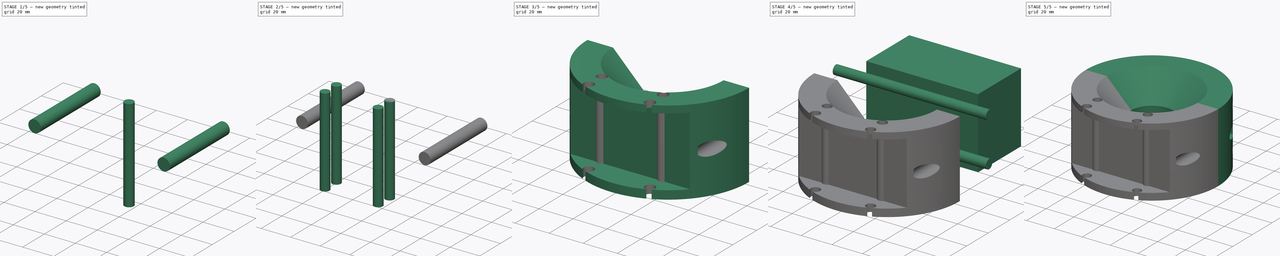
[diagram: build sequence overview — one tinted view per stage of 5, left to right]
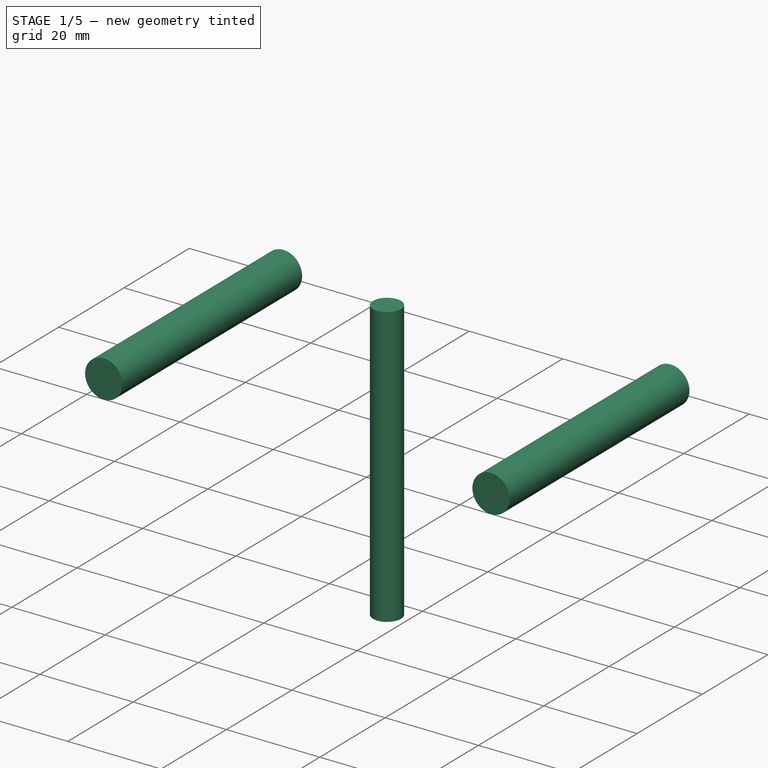
[diagram: stage 1 of 5 — iso view after this stage's code; geometry added in this stage tinted green]
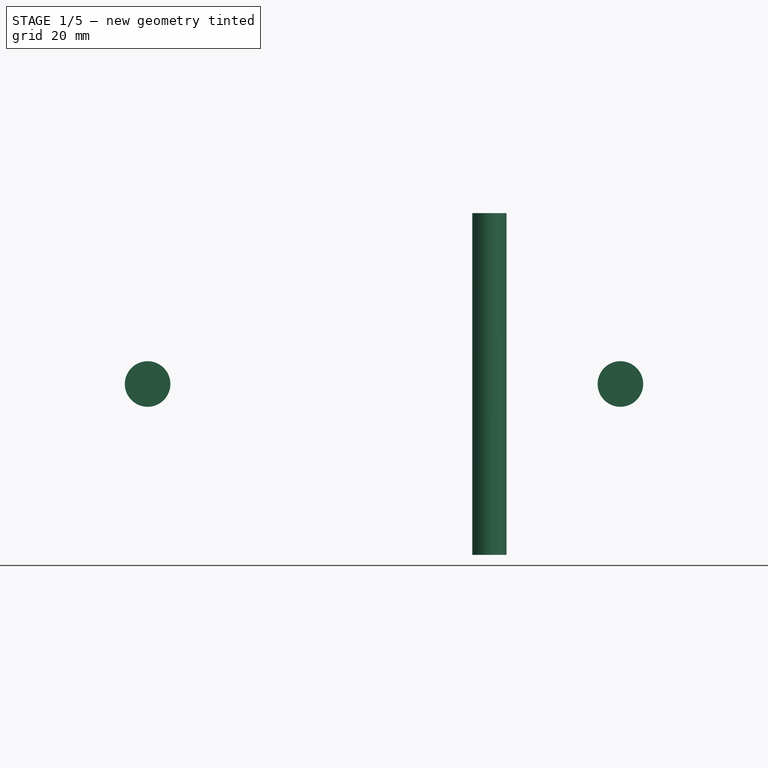
[diagram: stage 1 of 5 — front view after this stage's code; geometry added in this stage tinted green]
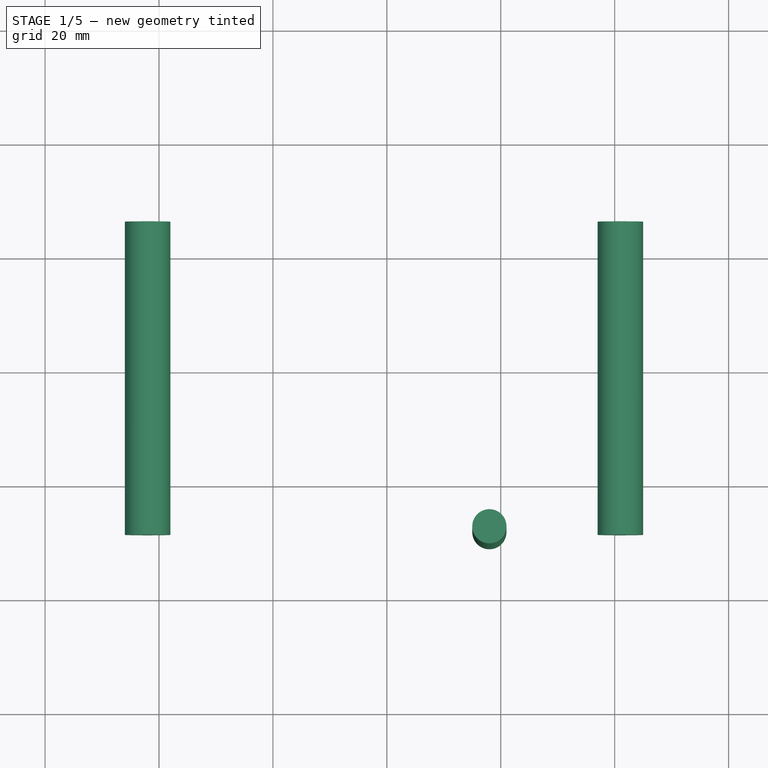
[diagram: stage 1 of 5 — top view after this stage's code; geometry added in this stage tinted green]
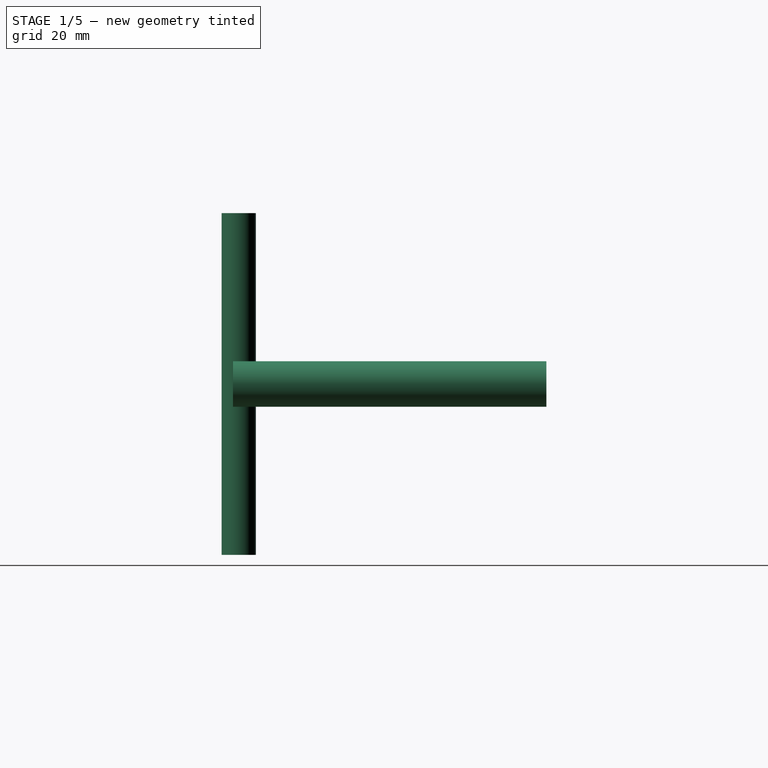
[diagram: stage 1 of 5 — right view after this stage's code; geometry added in this stage tinted green]
FCSTD DOCUMENT  (FreeCAD 0.16R5086 (Git))
Label: sujeccion
License: All rights reserved
LicenseURL: http://en.wikipedia.org/wiki/All_rights_reserved
objects: Part::Cut×6, Part::Cylinder×6, Part::MultiFuse×5, Part::Box×2, Sketcher::SketchObject×1, PartDesign::Revolution×1, Part::FeaturePython×1
note: 23 computed .brp shape members not serialized (recipe doc carries the construction recipe); baked Part::Feature solids carry a one-line shape summary decoded from their .brp

FEATURE [Part::Cylinder] Cylinder001  label="Cilindro001"
  Angle = 360
  Height = 60
  Placement = pos=(18,-28,-5) rot=(0,0,1;0rad)
  Radius = 3
FEATURE [Part::Cylinder] Cylinder002  label="Cilindro002"
  Angle = 360
  Height = 55
  Placement = pos=(41,26,25) rot=(1,0,0;1.5708rad)
  Radius = 4
FEATURE [Part::Cylinder] Cylinder005  label="Cilindro005"
  Angle = 360
  Height = 55
  Placement = pos=(-42,26,25) rot=(1,0,0;1.5708rad)
  Radius = 4
FEATURE [Part::MultiFuse] Fusion004
  Shapes = -> [Cylinder005,Cylinder002]
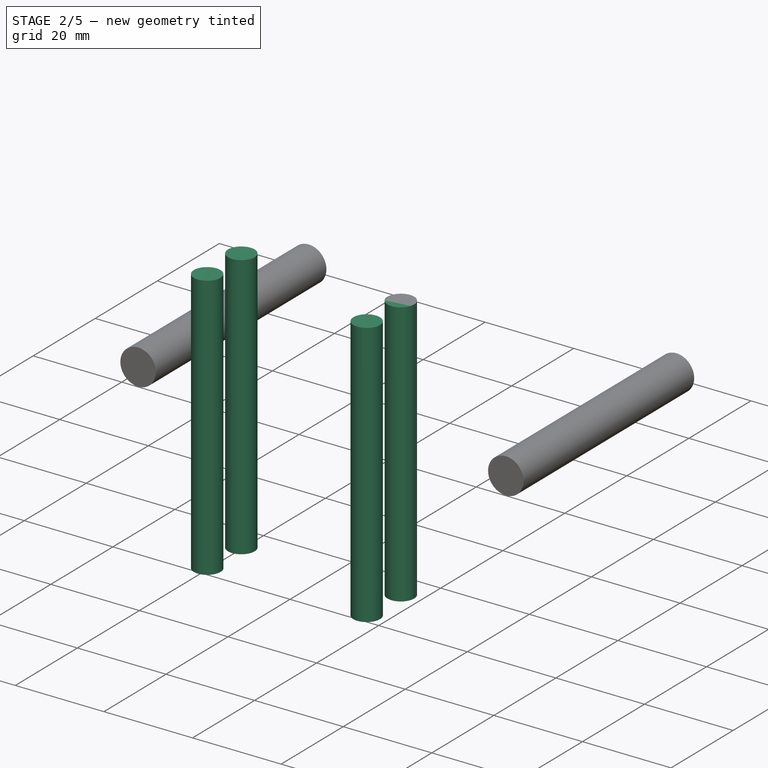
[diagram: stage 2 of 5 — iso view after this stage's code; geometry added in this stage tinted green]
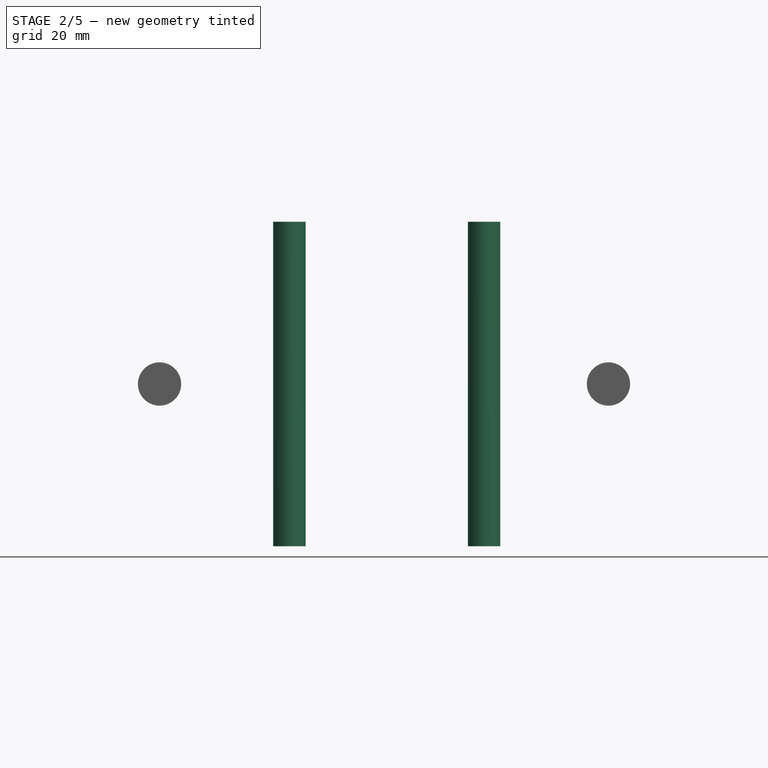
[diagram: stage 2 of 5 — front view after this stage's code; geometry added in this stage tinted green]
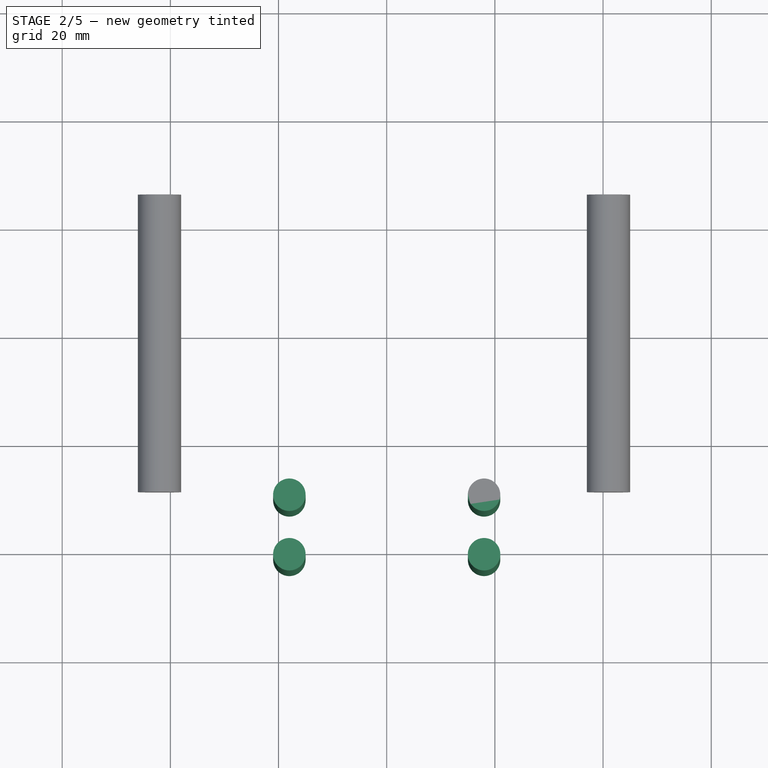
[diagram: stage 2 of 5 — top view after this stage's code; geometry added in this stage tinted green]
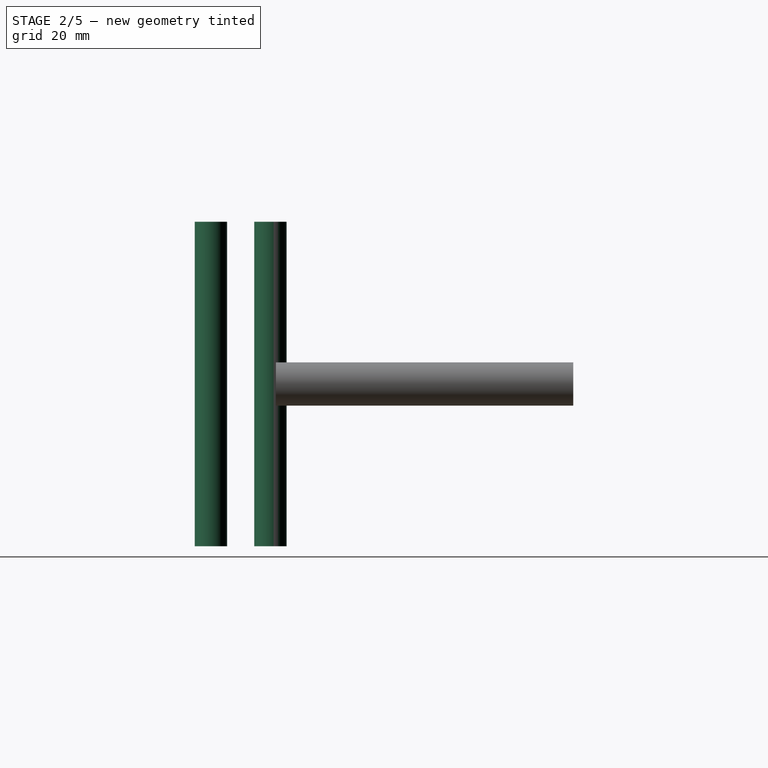
[diagram: stage 2 of 5 — right view after this stage's code; geometry added in this stage tinted green]
FEATURE [Part::Cylinder] Cylinder  label="Cilindro"
  Angle = 360
  Height = 60
  Placement = pos=(18,-39,-5) rot=(0,0,1;0rad)
  Radius = 3
FEATURE [Part::MultiFuse] Fusion
  Placement = pos=(-36,0,0) rot=(0,0,1;0rad)
  Shapes = -> [Cylinder,Cylinder001]
FEATURE [Part::MultiFuse] Fusion001
  Shapes = -> [Cylinder,Cylinder001]
FEATURE [Part::MultiFuse] Fusion002
  Placement = pos=(0,-2,0) rot=(0,0,1;0rad)
  Shapes = -> [Fusion001,Fusion]
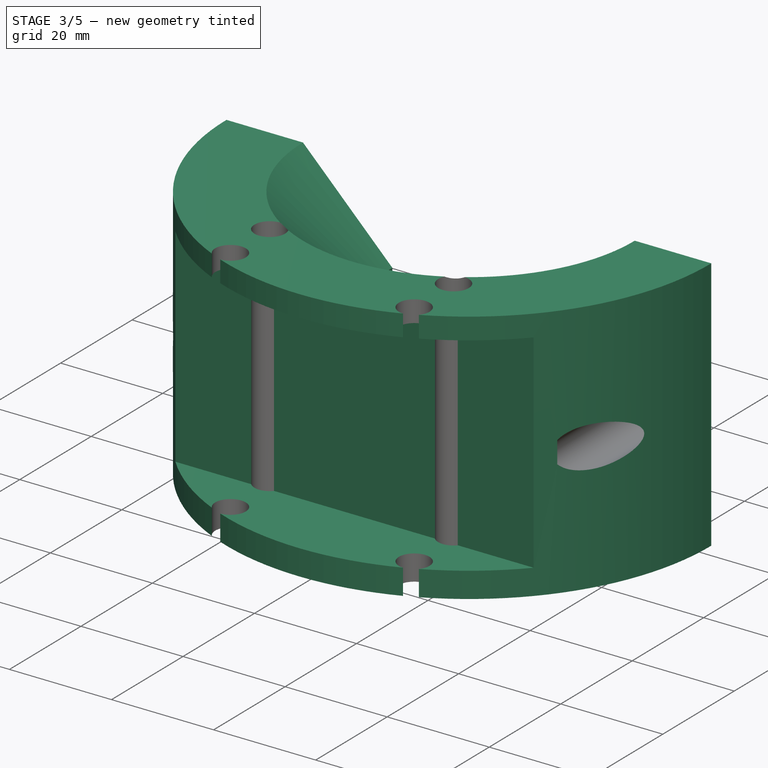
[diagram: stage 3 of 5 — iso view after this stage's code; geometry added in this stage tinted green]
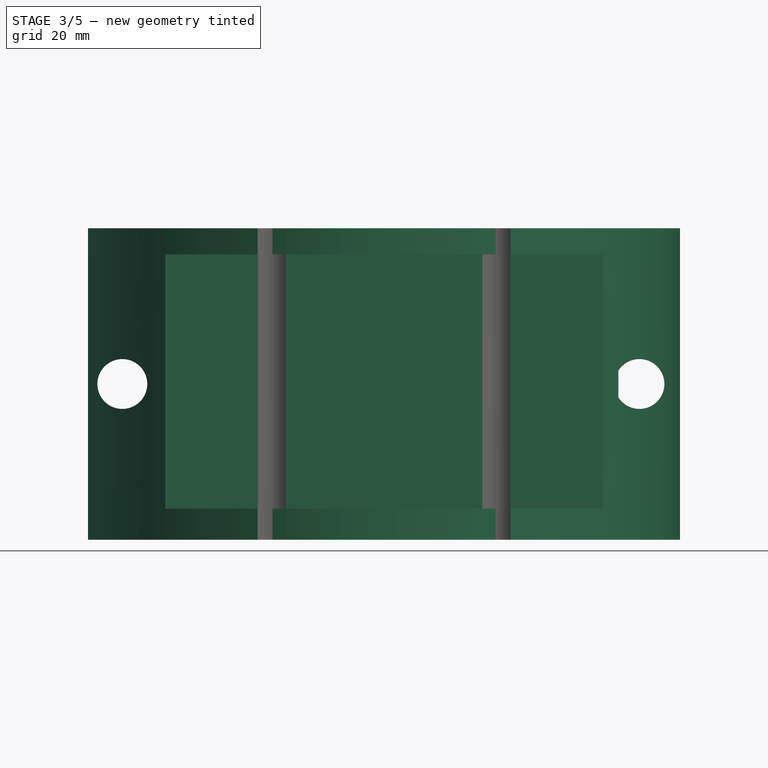
[diagram: stage 3 of 5 — front view after this stage's code; geometry added in this stage tinted green]
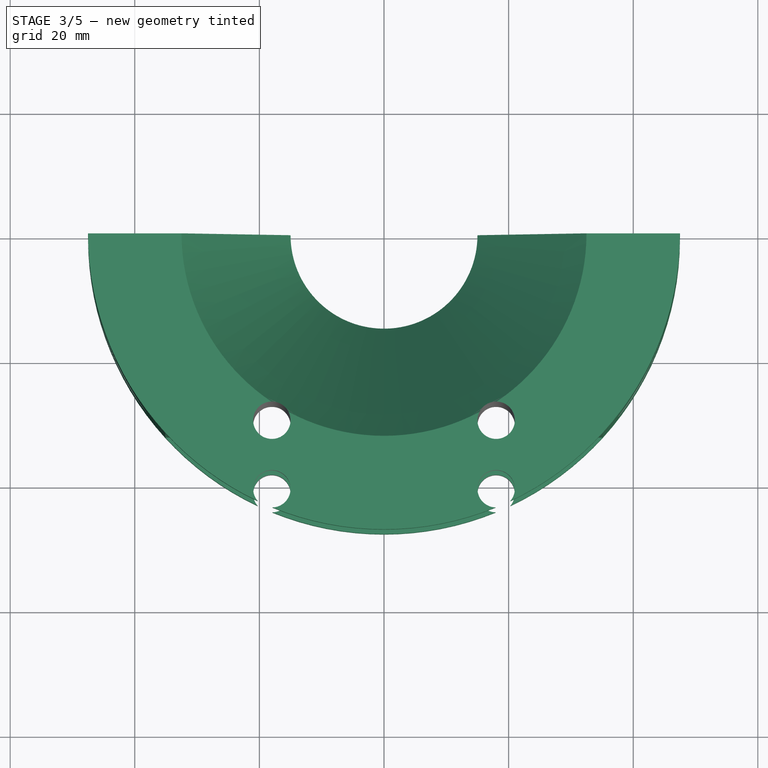
[diagram: stage 3 of 5 — top view after this stage's code; geometry added in this stage tinted green]
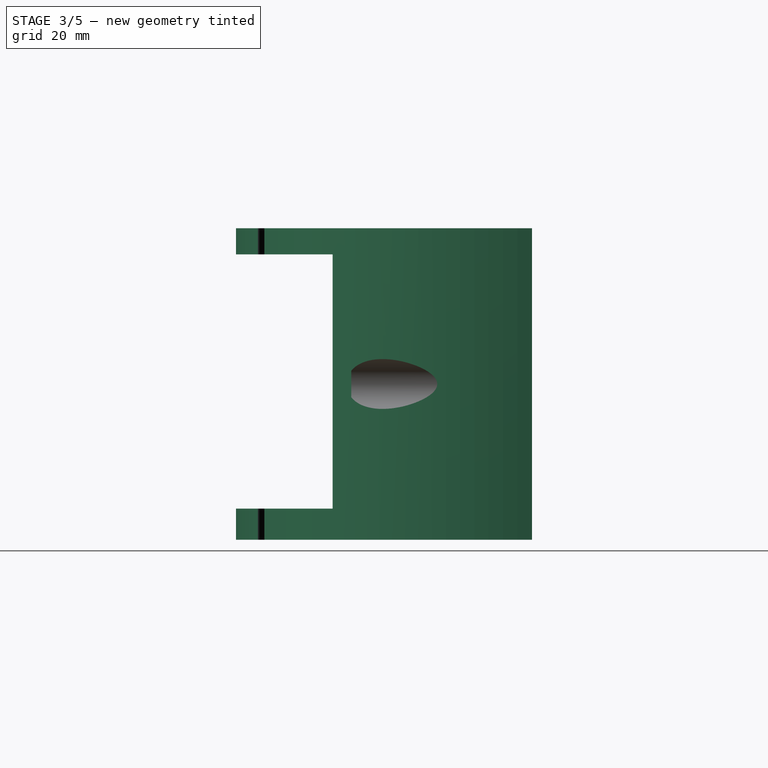
[diagram: stage 3 of 5 — right view after this stage's code; geometry added in this stage tinted green]
FEATURE [Sketcher::SketchObject] Sketch
  Placement = pos=(0,0,0) rot=(1,0,0;1.5708rad)
  sketch-geometry (7):
    g0: LineSegment StartX=32.5 StartY=50 StartZ=0 EndX=15 EndY=32.5 EndZ=0
    g1: LineSegment StartX=15 StartY=32.5 StartZ=0 EndX=15 EndY=17.5 EndZ=0
    g2: LineSegment StartX=15 StartY=17.5 StartZ=0 EndX=32.5 EndY=0 EndZ=0
    g3: LineSegment StartX=32.5 StartY=0 StartZ=0 EndX=47.5 EndY=0 EndZ=0
    g4: LineSegment StartX=47.5 StartY=0 StartZ=0 EndX=47.5 EndY=50 EndZ=0
    g5: LineSegment StartX=47.5 StartY=50 StartZ=0 EndX=32.5 EndY=50 EndZ=0
    g6: LineSegment [constr] StartX=32.5 StartY=50 StartZ=0 EndX=32.5 EndY=0 EndZ=0
  constraints (20):
    c: Coincident(g0,g1)
    c: Vertical(g1)
    c: Coincident(g1,g2)
    c: Coincident(g2,g3)
    c: Horizontal(g3)
    c: Coincident(g3,g4)
    c: Vertical(g4)
    c: Coincident(g4,g5)
    c: Coincident(g5,g0)
    c: Horizontal(g5)
    c: Coincident(g6,g0)
    c: Coincident(g6,g2)
    c: Vertical(g6)
    c: Equal(g2,g0)
    c: PointOnObject(g3,g-1)
    c: Angle(g-1,g2) = 2.35619
    c: DistanceX(g-2,g1) = 15
    c: Distance(g1) = 15
    c: Distance(g4) = 50
    c: Distance(g5) = 15
FEATURE [PartDesign::Revolution] Revolution
  Angle = 180
  Axis = (0,0,1)
  Base = (0,0,0)
  Placement = pos=(0,0,0) rot=(1,0,0;1.5708rad)
  ReferenceAxis = -> Sketch [V_Axis]
  Reversed = true
  Sketch = -> Sketch
FEATURE [Part::Box] Box  label="Cubo"
  Height = 40.8
  Length = 73
  Placement = pos=(-36,-72,5) rot=(0,0,1;0rad)
  Width = 40
FEATURE [Part::Cut] Cut
  Base = -> Revolution
  Tool = -> Box
FEATURE [Part::Cut] Cut001
  Base = -> Cut
  Tool = -> Fusion002
FEATURE [Part::Cut] Cut005
  Base = -> Cut001
  Tool = -> Fusion004
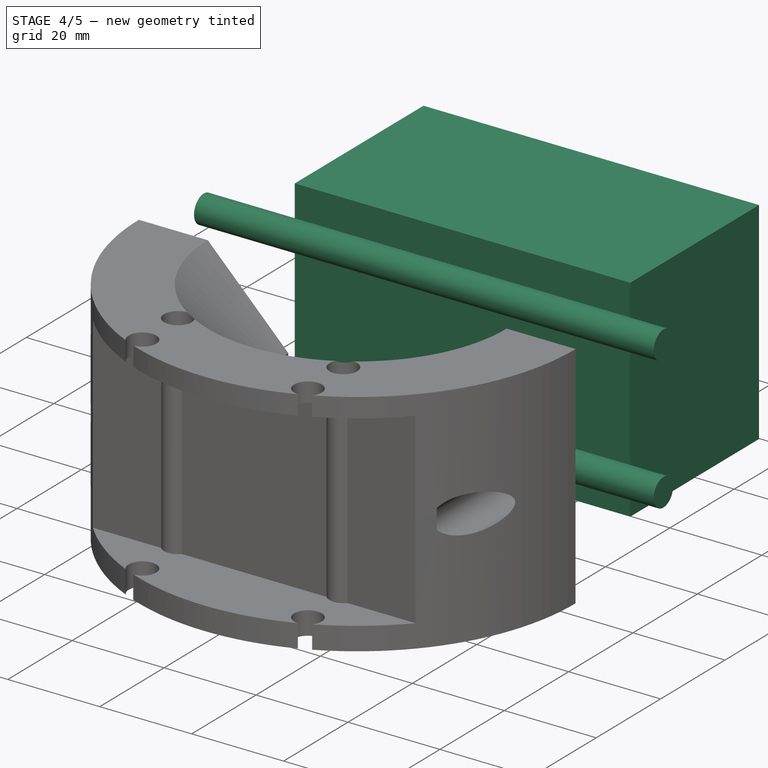
[diagram: stage 4 of 5 — iso view after this stage's code; geometry added in this stage tinted green]
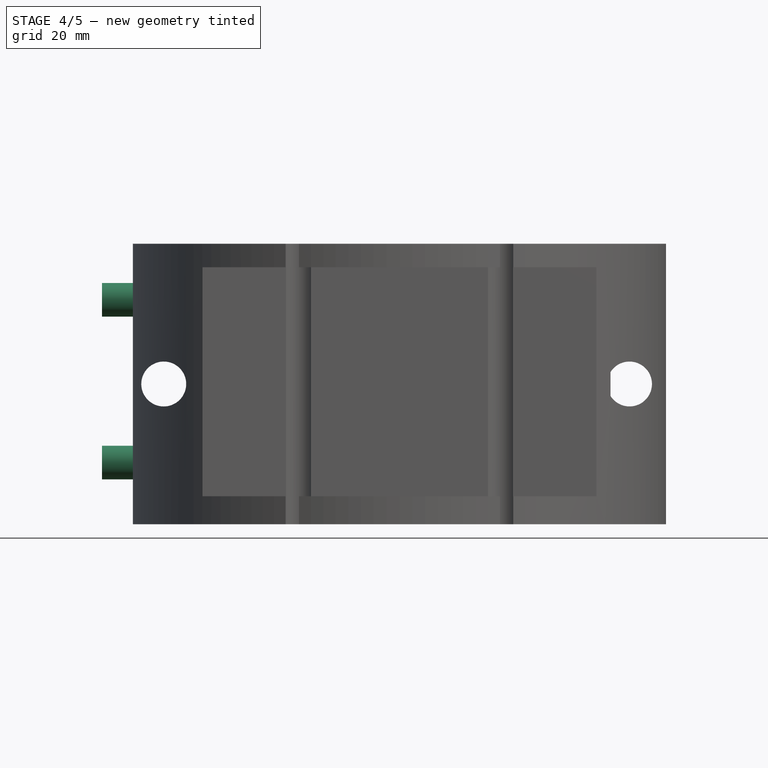
[diagram: stage 4 of 5 — front view after this stage's code; geometry added in this stage tinted green]
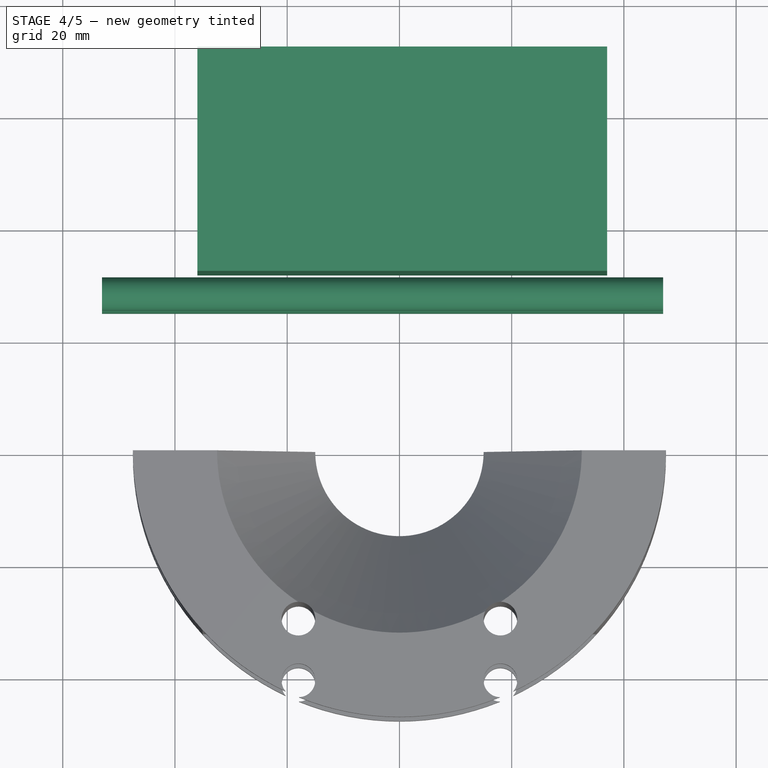
[diagram: stage 4 of 5 — top view after this stage's code; geometry added in this stage tinted green]
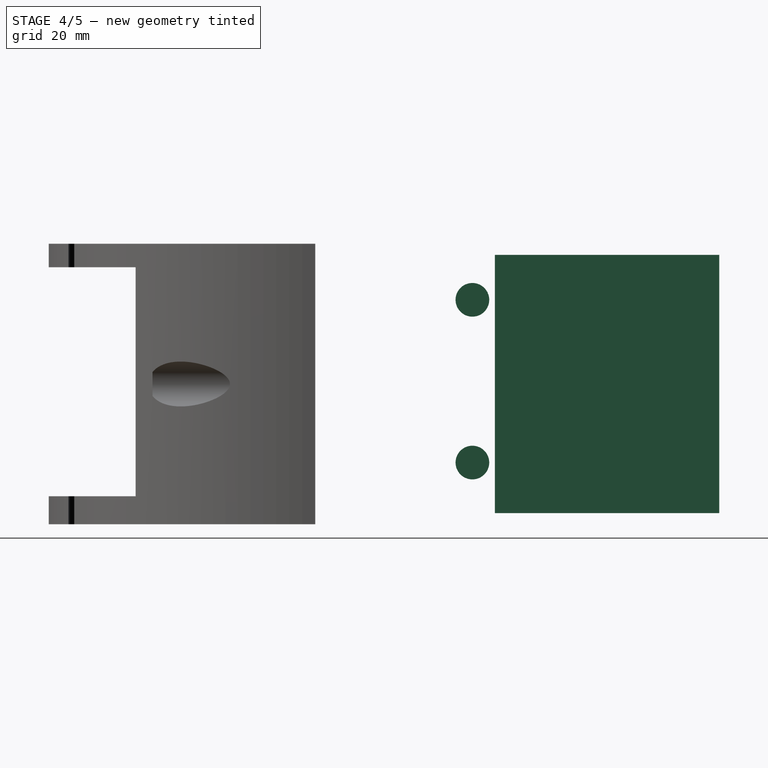
[diagram: stage 4 of 5 — right view after this stage's code; geometry added in this stage tinted green]
FEATURE [Part::Box] Box001  label="Cubo001"
  Height = 46
  Length = 73
  Placement = pos=(-36,32,2) rot=(0,0,1;0rad)
  Width = 40
FEATURE [Part::Cylinder] Cylinder003  label="Cilindro003"
  Angle = 360
  Height = 100
  Placement = pos=(47,28,40) rot=(0.57735,-0.57735,-0.57735;2.0944rad)
  Radius = 3
FEATURE [Part::Cylinder] Cylinder004  label="Cilindro004"
  Angle = 360
  Height = 100
  Placement = pos=(47,28,11) rot=(0.57735,-0.57735,-0.57735;2.0944rad)
  Radius = 3
FEATURE [Part::MultiFuse] Fusion003
  Shapes = -> [Cylinder004,Cylinder003]
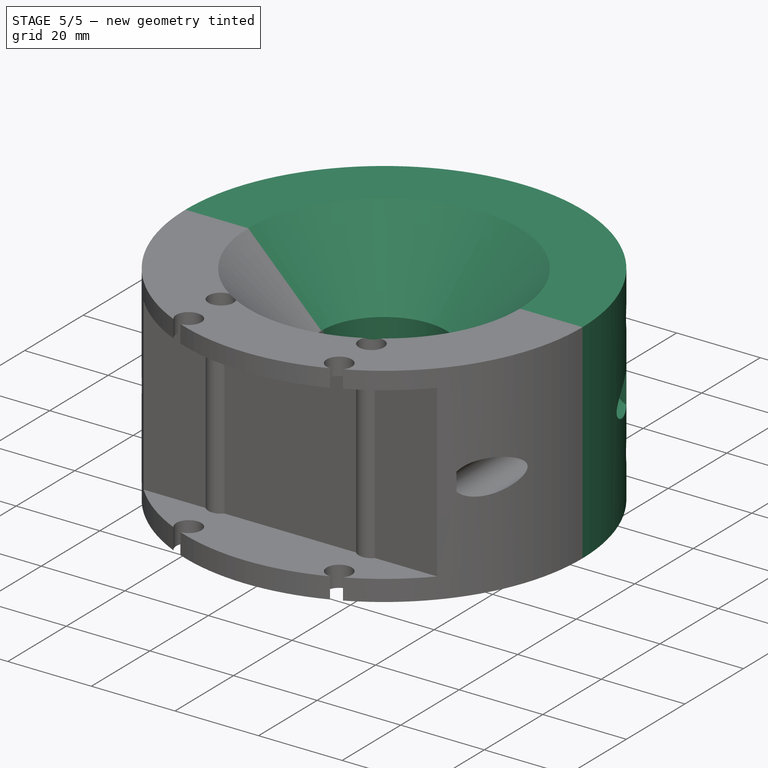
[diagram: stage 5 of 5 — iso view after this stage's code; geometry added in this stage tinted green]
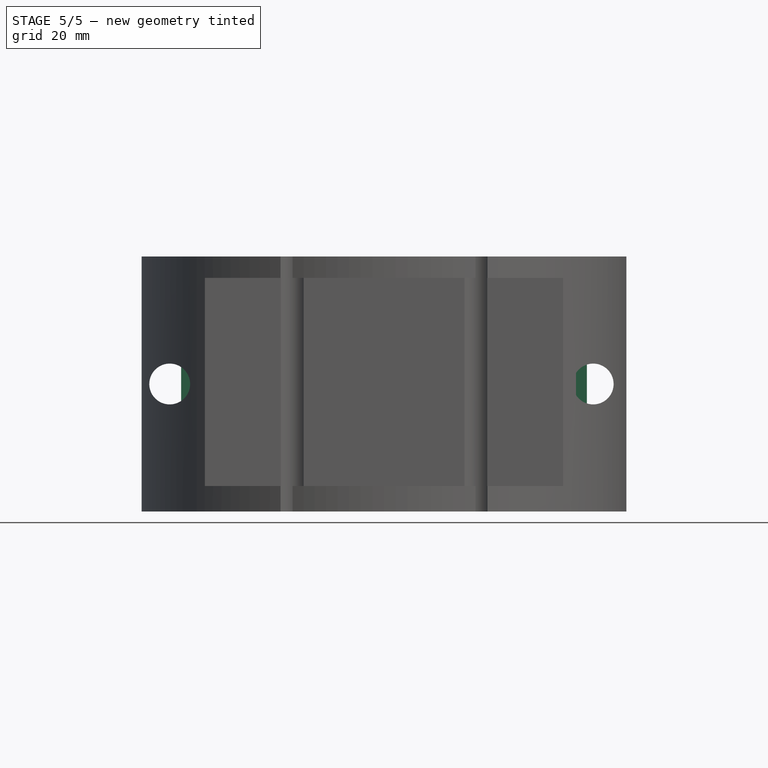
[diagram: stage 5 of 5 — front view after this stage's code; geometry added in this stage tinted green]
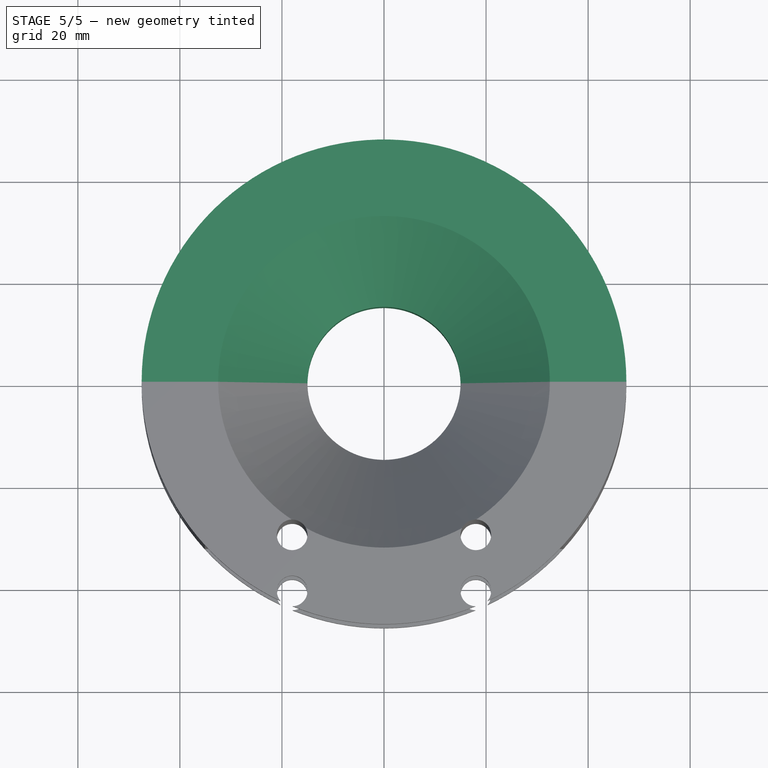
[diagram: stage 5 of 5 — top view after this stage's code; geometry added in this stage tinted green]
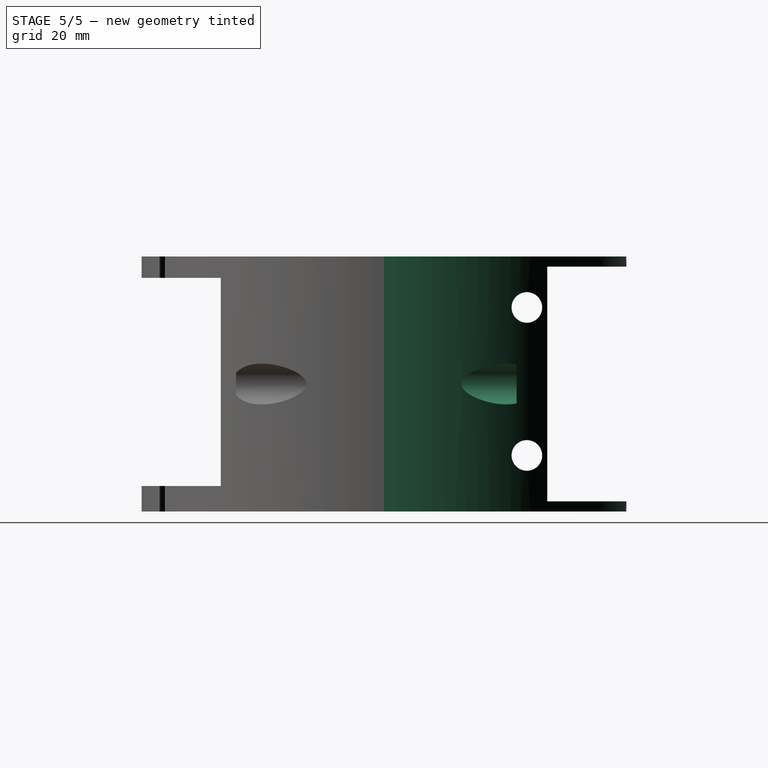
[diagram: stage 5 of 5 — right view after this stage's code; geometry added in this stage tinted green]
FEATURE [Part::FeaturePython] Clone  label="Clone of Revolution"  # Draft clone (typed FeaturePython)
  Objects = -> [Revolution]
  Placement = pos=(0,0,0) rot=(0,-0.707107,-0.707107;3.14159rad)
  Scale = (1,1,1)
FEATURE [Part::Cut] Cut002
  Base = -> Clone
  Tool = -> Box001
FEATURE [Part::Cut] Cut003
  Base = -> Cut002
  Tool = -> Fusion003
FEATURE [Part::Cut] Cut004
  Base = -> Cut003
  Tool = -> Fusion004
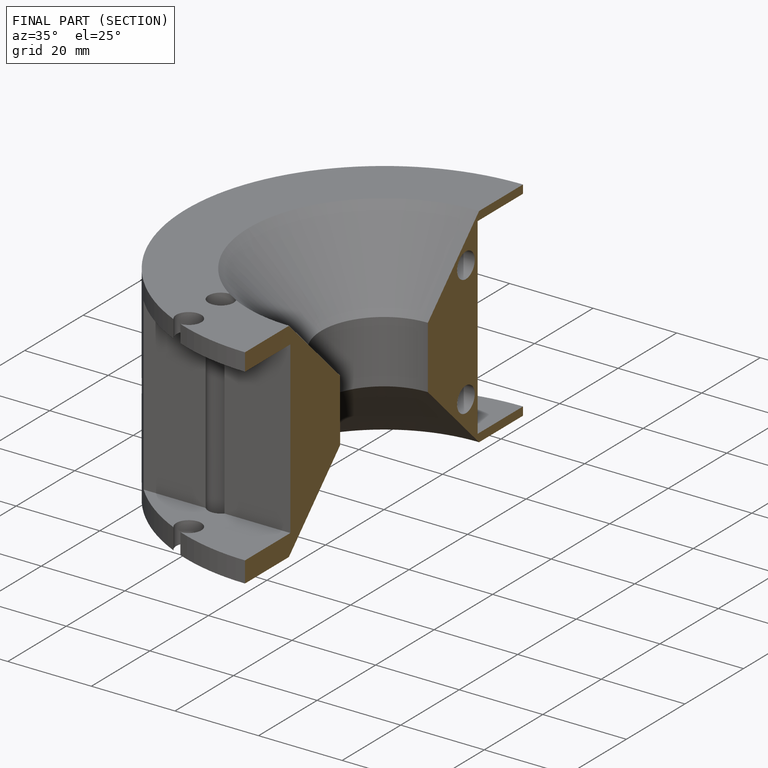
[diagram: finished part — half-section view (interior)]
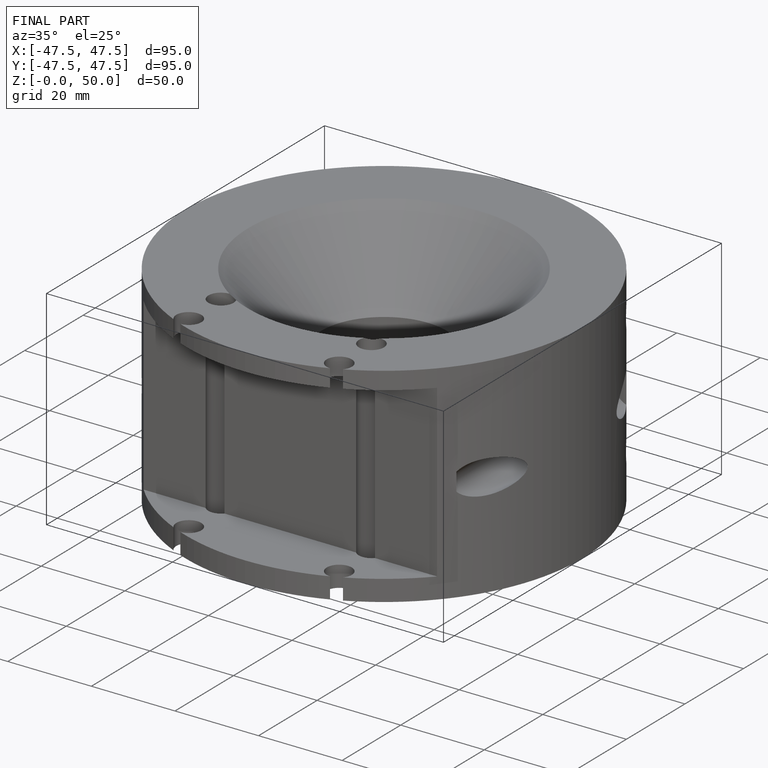
[diagram: finished part — iso view with bounding-box wireframe]
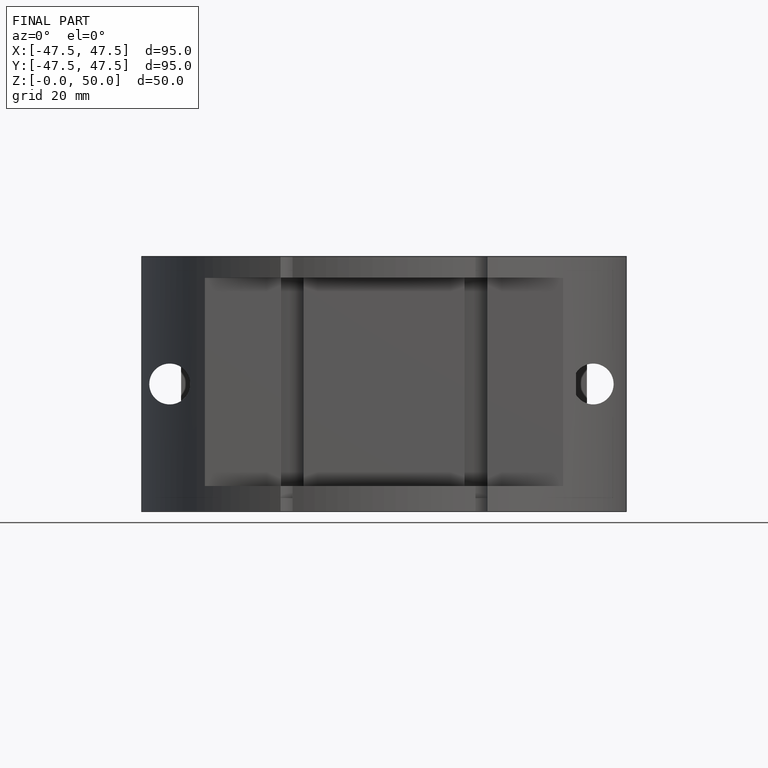
[diagram: finished part — front view with bounding-box wireframe]
